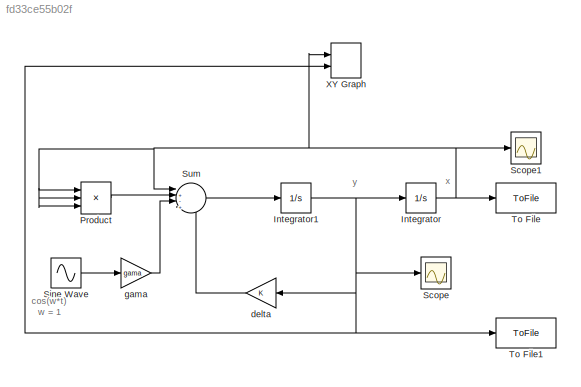
MODEL slx_fd33ce55b02f
KIND model
CONFIG AbsTol = auto
CONFIG EnableMultiTasking = on
CONFIG FixedStep = auto
CONFIG MaxStep = 0.01
CONFIG MinStep = auto
CONFIG RelTol = 1e-3
CONFIG SampleTimeConstraint = Unconstrained
CONFIG SolverName = ode45
CONFIG StartTime = 0.0
CONFIG StopTime = 50
BLOCK [Integrator] Integrator
  InitialCondition = 0.4
  Ports = [1, 1]
BLOCK [Integrator] Integrator1
  InitialCondition = 0.4
  Ports = [1, 1]
BLOCK [Product] Product
  Inputs = 3
  Ports = [3, 1]
BLOCK [Scope] Scope
  Floating = off
  NumInputPorts = 1
  Ports = [1]
  ScopeSpecificationString = C++SS(StrPVP('Location','[188, 390, 512, 629]'),StrPVP('Open','off'),MxPVP('AxesTitles',54,'struct(''axes1'',''%<SignalLabel>'')'),StrPVP('ShowLegends','off'),StrPVP('DataFormat','StructureWithTime'),StrPVP('BlockParamSampleTime','0'),StrPVP('LimitDataPoints','on'),StrPVP('Decimation','1'),StrPVP('BlockParamSampleInput','off'))
BLOCK [Scope] Scope1
  Floating = off
  NumInputPorts = 1
  Ports = [1]
  ScopeSpecificationString = Simulink.scopes.TimeScopeBlockCfg('CurrentConfiguration', extmgr.ConfigurationSet(extmgr.Configuration('Core','General UI',true),extmgr.Configuration('Core','Source UI',true),extmgr.Configuration('Sources','WiredSimulink',true,'DataLoggingVariableName','ScopeData1','DataLoggingSaveFormat','StructureWithTime','DataLoggingLimitDataPoints',true,'DataLoggingDecimation','1','DataLoggingDecimateData',tr...<+911ch>
BLOCK [Sin] Sine Wave
  Phase = pi/2
  Ports = [0, 1]
  SampleTime = 0
BLOCK [Sum] Sum
  Inputs = |+-+-
  Ports = [4, 1]
BLOCK [ToFile] To File
  Filename = x.mat
  MatrixName = x
  Ports = [1]
BLOCK [ToFile] To File1
  Filename = y.mat
  MatrixName = y
  Ports = [1]
BLOCK [Record] XY Graph
  CompatibilityTag = XY
  FileSettingsInternal = {"entries":[{"content":{"excelSettings":{"content":{},"type":"Streamout.ExcelSettings"}},"type":"Streamout.FileSettingStorage","uuid":"174947f5-cead-4837-b813-202f870a3ebf"}],"packageUris":["http://schema.mathworks.com/mf0/streamout_blocks/R2020a"],"version":"1.0"}
  Layout = [1 1]
  Ports = [2]
  SignalsInternal = {"entries":[{"content":{"signals":[{"content":{"blockPath":["fig5_5_simulink/XY Graph"],"channel":[],"dimensions":[1],"domain":"fig5_5_simulink/XY Graph","lineColor":"#edb120","plots":[],"port":1,"sid":[""],"signalID":123,"signalName":"Integrator"},"type":"RecordBlkView.Signal","uuid":"46063df0-3239-4c14-ba44-69b37a26072b"},{"content":{"blockPath":["fig5_5_simulink/XY Graph"],"channel":[],"dimensi...<+394ch>
  VisualizationBindings = {"xyplotplugin":{"info":[{"series":[],"subplotID":1}]}}
  st = -1
BLOCK [Gain] delta
  NameLocation = top
BLOCK [Gain] gama
  Gain = gama
ANNOTATION (root): cos(w*t) w = 1
ANNOTATION (root): x
ANNOTATION (root): y
NET Integrator1:1 -> Integrator:1, Scope:1, To File1:1, XY Graph:2, delta:1
NET Integrator:1 -> Product:1, Product:2, Product:3, Scope1:1, Sum:1, To File:1, XY Graph:1
LINE Product:1 -> Sum:2
LINE Sine Wave:1 -> gama:1
LINE Sum:1 -> Integrator1:1
LINE delta:1 -> Sum:4
LINE gama:1 -> Sum:3
note: NET lines group one-source signal fan-out (src -> all destinations, sorted); 1:1 wires keep LINE
